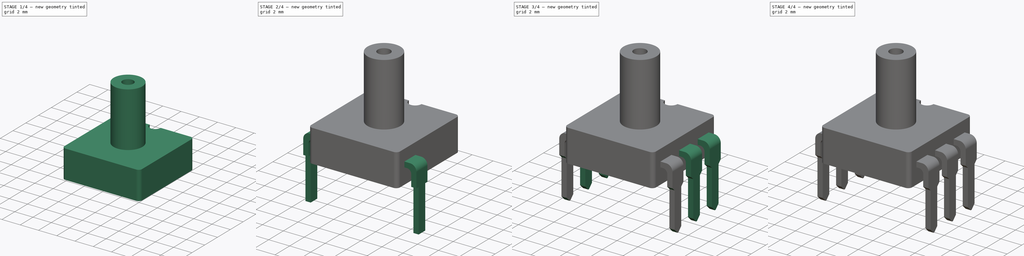
[diagram: build sequence overview — one tinted view per stage of 4, left to right]
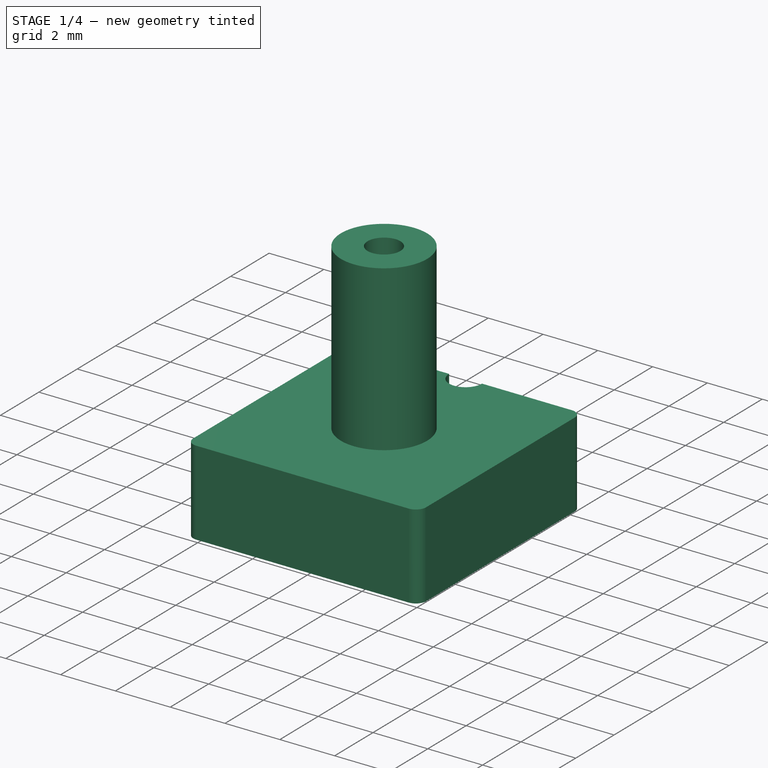
[diagram: stage 1 of 4 — iso view after this stage's code; geometry added in this stage tinted green]
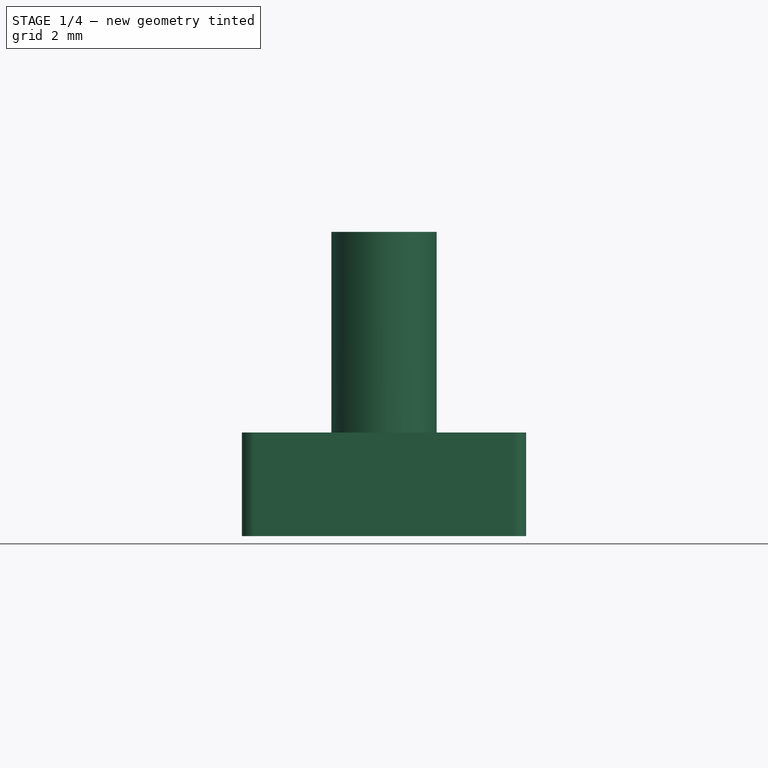
[diagram: stage 1 of 4 — front view after this stage's code; geometry added in this stage tinted green]
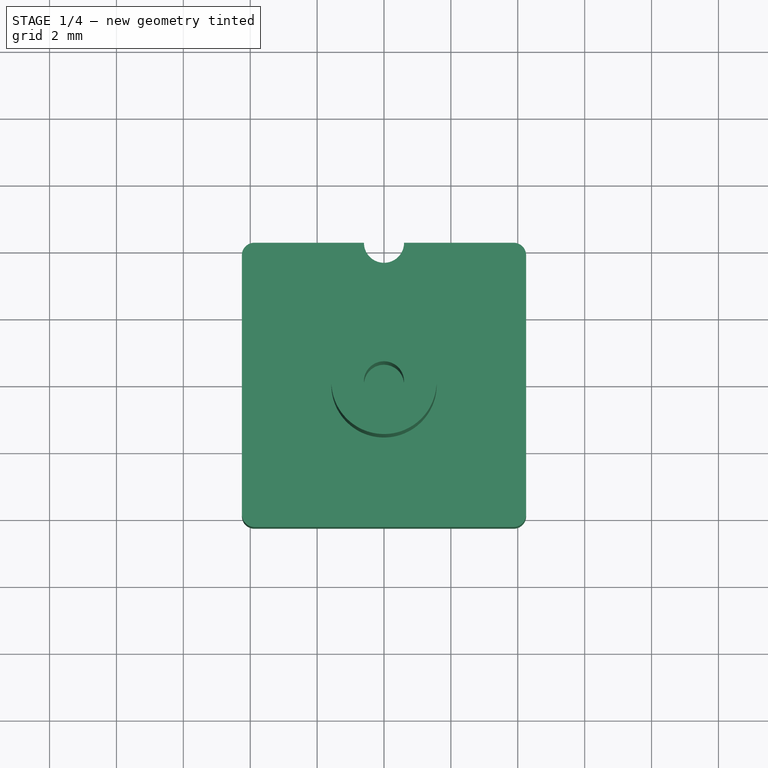
[diagram: stage 1 of 4 — top view after this stage's code; geometry added in this stage tinted green]
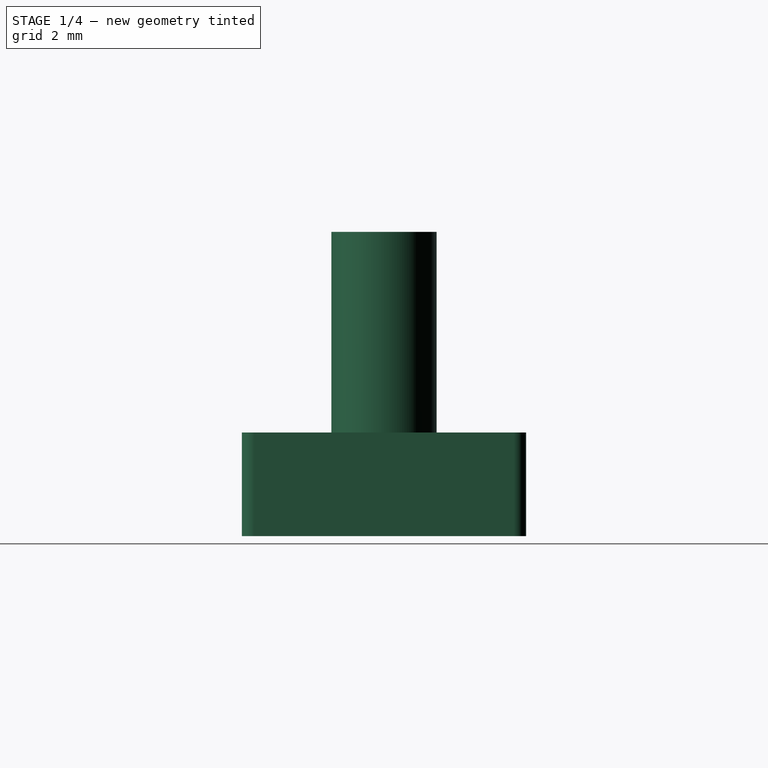
[diagram: stage 1 of 4 — right view after this stage's code; geometry added in this stage tinted green]
FCSTD DOCUMENT  (FreeCAD 0.19R24276 (Git))
Label: XGZP6857D200KPGPN33 
License: All rights reserved
LicenseURL: http://en.wikipedia.org/wiki/All_rights_reserved
objects: Sketcher::SketchObject×5, PartDesign::Pad×3, PartDesign::Chamfer×3, PartDesign::Pocket×2, PartDesign::LinearPattern×1, PartDesign::Body×1
note: 23 computed .brp shape members not serialized (recipe doc carries the construction recipe); baked Part::Feature solids carry a one-line shape summary decoded from their .brp

FEATURE [Sketcher::SketchObject] Sketch
  FullyConstrained = true
  MapMode = 5
  Support = -> [XY_Plane]
  sketch-geometry (20):
    g0: LineSegment StartX=-3.875 StartY=-4.25 StartZ=0 EndX=3.875 EndY=-4.25 EndZ=0
    g1: LineSegment StartX=4.25 StartY=-3.875 StartZ=0 EndX=4.25 EndY=3.875 EndZ=0
    g2: LineSegment StartX=3.875 StartY=4.25 StartZ=0 EndX=0.6 EndY=4.25 EndZ=0
    g3: LineSegment StartX=-4.25 StartY=3.875 StartZ=0 EndX=-4.25 EndY=-3.875 EndZ=0
    g4: ArcOfCircle CenterX=0 CenterY=4.25 CenterZ=0 NormalX=0 NormalY=0 NormalZ=1 AngleXU=0 Radius=0.6 StartAngle=3.14159 EndAngle=6.28319
    g5: LineSegment StartX=-0.6 StartY=4.25 StartZ=0 EndX=-3.875 EndY=4.25 EndZ=0
    g6: ArcOfCircle CenterX=-3.875 CenterY=3.875 CenterZ=0 NormalX=0 NormalY=0 NormalZ=1 AngleXU=0 Radius=0.375 StartAngle=1.5708 EndAngle=3.14159
    g7: GeomPoint X=-4.25 Y=4.25 Z=0
    g8: ArcOfCircle CenterX=-3.875 CenterY=-3.875 CenterZ=0 NormalX=0 NormalY=0 NormalZ=1 AngleXU=0 Radius=0.375 StartAngle=3.14159 EndAngle=4.71239
    g9: GeomPoint X=-4.25 Y=-4.25 Z=0
    g10: ArcOfCircle CenterX=3.875 CenterY=-3.875 CenterZ=0 NormalX=0 NormalY=0 NormalZ=1 AngleXU=0 Radius=0.375 StartAngle=4.71239 EndAngle=6.28319
    g11: GeomPoint X=4.25 Y=-4.25 Z=0
    g12: ArcOfCircle CenterX=3.875 CenterY=3.875 CenterZ=0 NormalX=0 NormalY=0 NormalZ=1 AngleXU=0 Radius=0.375 StartAngle=4e-16 EndAngle=1.5708
    g13: GeomPoint X=4.25 Y=4.25 Z=0
    g14: Circle CenterX=-5.08 CenterY=2.54 CenterZ=0 NormalX=0 NormalY=0 NormalZ=1 AngleXU=0 Radius=0.45
    g15: Circle CenterX=-5.08 CenterY=0 CenterZ=0 NormalX=0 NormalY=0 NormalZ=1 AngleXU=0 Radius=0.45
    g16: Circle CenterX=-5.08 CenterY=-2.54 CenterZ=0 NormalX=0 NormalY=0 NormalZ=1 AngleXU=0 Radius=0.45
    g17: Circle CenterX=5.08 CenterY=-2.54 CenterZ=0 NormalX=0 NormalY=0 NormalZ=1 AngleXU=0 Radius=0.45
    g18: Circle CenterX=5.08 CenterY=0 CenterZ=0 NormalX=0 NormalY=0 NormalZ=1 AngleXU=0 Radius=0.45
    g19: Circle CenterX=5.08 CenterY=2.54 CenterZ=0 NormalX=0 NormalY=0 NormalZ=1 AngleXU=0 Radius=0.45
  constraints (48):
    c: Horizontal(g2)
    c: Vertical(g1)
    c: Symmetric(g7,g9,g-1)
    c: Symmetric(g9,g11,g-2)
    c: DistanceY(g9,g7) = 8.5
    c: PointOnObject(g4,g2)
    c: PointOnObject(g4,g-2)
    c: Coincident(g2,g4)
    c: Coincident(g5,g4)
    c: Tangent(g2,g5)
    c: Diameter(g4) = 1.2
    c: PointOnObject(g7,g3)
    c: PointOnObject(g7,g5)
    c: Tangent(g3,g6) = -1.5708
    c: Tangent(g5,g6) = -1.5708
    c: PointOnObject(g9,g3)
    c: PointOnObject(g9,g0)
    c: Tangent(g3,g8) = -1.5708
    c: Tangent(g0,g8) = -1.5708
    c: PointOnObject(g11,g0)
    c: PointOnObject(g11,g1)
    c: Tangent(g0,g10) = -1.5708
    c: Tangent(g1,g10) = -1.5708
    c: PointOnObject(g13,g1)
    c: PointOnObject(g13,g2)
    c: Tangent(g1,g12) = -1.5708
    c: Tangent(g2,g12) = -1.5708
    c: Equal(g10,g12)
    c: Equal(g12,g6)
    c: Equal(g6,g8)
    c: Diameter(g12) = 0.75
    c: DistanceX(g3,g1) = 8.5
    c: PointOnObject(g15,g-1)
    c: PointOnObject(g18,g-1)
    c: Vertical(g19,g18)
    c: Vertical(g18,g17)
    c: Vertical(g16,g15)
    c: Horizontal(g17,g16)
    c: Symmetric(g14,g19,g-2)
    c: Symmetric(g16,g14,g-1)
    c: Equal(g14,g15)
    c: Equal(g15,g16)
    c: Equal(g16,g17)
    c: Equal(g17,g18)
    c: Equal(g18,g19)
    c: Diameter(g14) = 0.9
    c: DistanceY(g16,g15) = 2.54
    c: DistanceX(g16,g17) = 10.16
FEATURE [PartDesign::Pad] Pad
  Direction = (1,1,1)
  Length = 3.1
  Length2 = 100
  Profile = -> Sketch
  Type = 0
FEATURE [Sketcher::SketchObject] Sketch001
  FullyConstrained = true
  MapMode = 5
  Support = -> [XY_Plane]
  sketch-geometry (2):
    g0: Circle CenterX=0 CenterY=0 CenterZ=0 NormalX=0 NormalY=0 NormalZ=1 AngleXU=0 Radius=1.575
    g1: Circle CenterX=0 CenterY=0 CenterZ=0 NormalX=0 NormalY=0 NormalZ=1 AngleXU=0 Radius=0.6
  constraints (5):
    c: Coincident(g0,g-1)
    c: Diameter(g0) = 3.15
    c: PointOnObject(g1,g-1)
    c: Diameter(g1) = 1.2
    c: PointOnObject(g1,g-2)
FEATURE [PartDesign::Pad] Pad001
  BaseFeature = -> Pad
  Direction = (1,1,1)
  Length = 9.1
  Length2 = 100
  Profile = -> Sketch001
  Type = 0
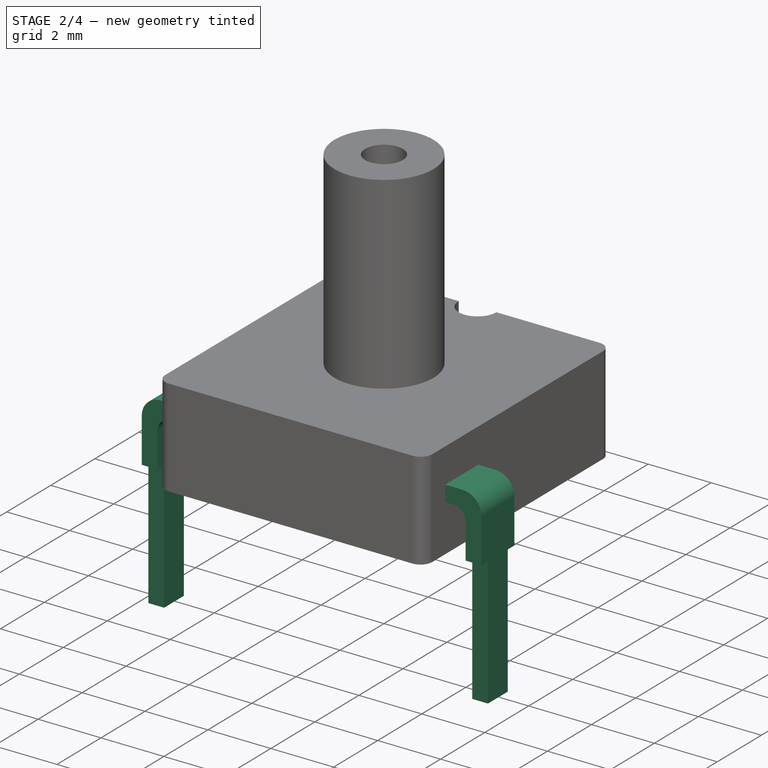
[diagram: stage 2 of 4 — iso view after this stage's code; geometry added in this stage tinted green]
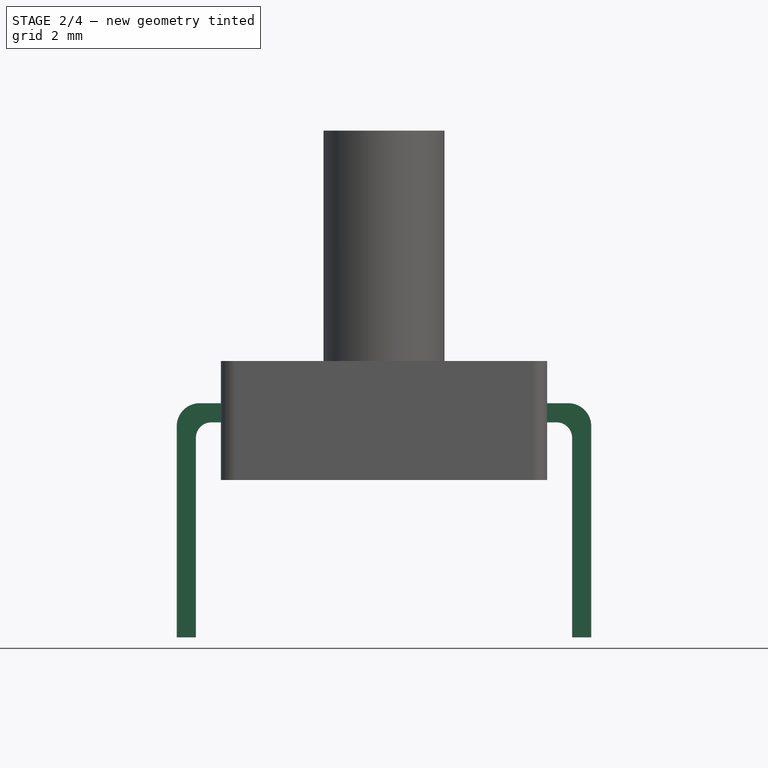
[diagram: stage 2 of 4 — front view after this stage's code; geometry added in this stage tinted green]
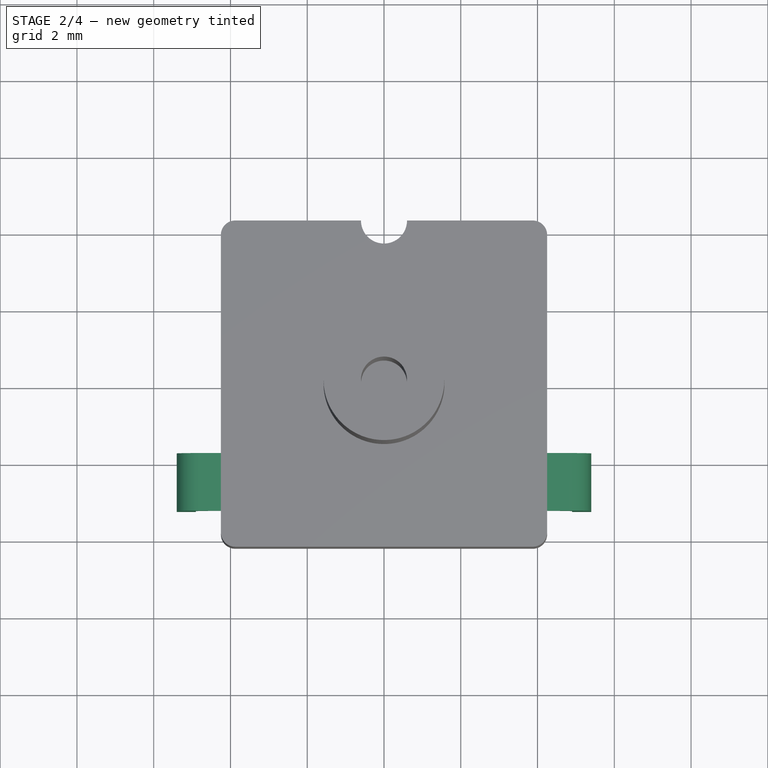
[diagram: stage 2 of 4 — top view after this stage's code; geometry added in this stage tinted green]
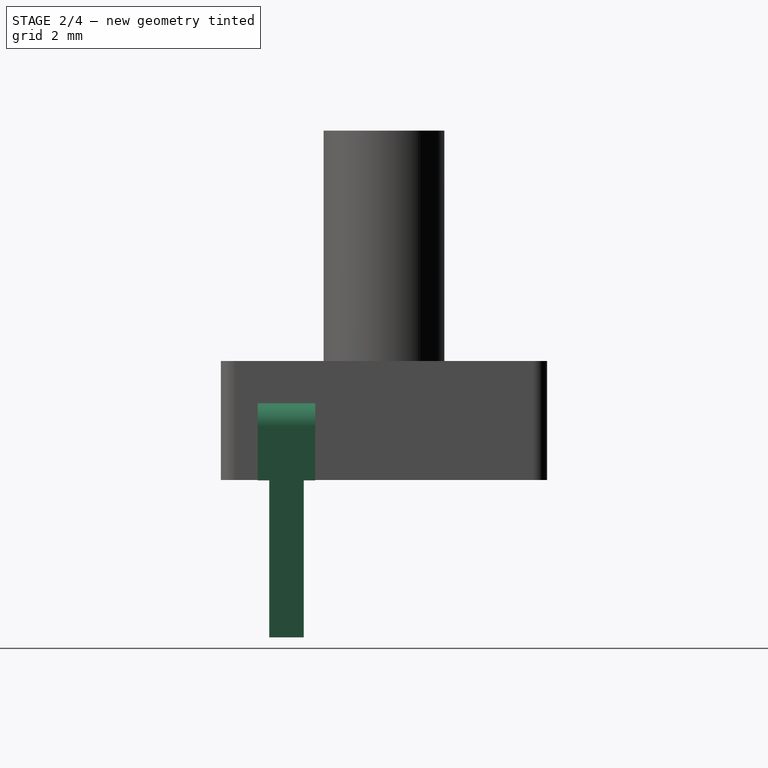
[diagram: stage 2 of 4 — right view after this stage's code; geometry added in this stage tinted green]
FEATURE [Sketcher::SketchObject] Sketch002
  AttachmentOffset = pos=(0,0,-4.1) rot=(0,0,1;0rad)
  FullyConstrained = false
  MapMode = 5
  Placement = pos=(0,0,-4.1) rot=(0,0,1;0rad)
  Support = -> [XY_Plane]
  sketch-geometry (36):
    g0: LineSegment StartX=-3.875 StartY=-4.25 StartZ=0 EndX=3.875 EndY=-4.25 EndZ=0
    g1: LineSegment StartX=4.25 StartY=-3.875 StartZ=0 EndX=4.25 EndY=3.875 EndZ=0
    g2: LineSegment StartX=3.875 StartY=4.25 StartZ=0 EndX=0.6 EndY=4.25 EndZ=0
    g3: LineSegment StartX=-4.25 StartY=3.875 StartZ=0 EndX=-4.25 EndY=-3.875 EndZ=0
    g4: ArcOfCircle CenterX=0 CenterY=4.25 CenterZ=0 NormalX=0 NormalY=0 NormalZ=1 AngleXU=0 Radius=0.6 StartAngle=3.14159 EndAngle=6.28319
    g5: LineSegment StartX=-0.6 StartY=4.25 StartZ=0 EndX=-3.875 EndY=4.25 EndZ=0
    g6: ArcOfCircle CenterX=-3.875 CenterY=3.875 CenterZ=0 NormalX=0 NormalY=0 NormalZ=1 AngleXU=0 Radius=0.375 StartAngle=1.5708 EndAngle=3.14159
    g7: GeomPoint X=-4.25 Y=4.25 Z=0
    g8: ArcOfCircle CenterX=-3.875 CenterY=-3.875 CenterZ=0 NormalX=0 NormalY=0 NormalZ=1 AngleXU=0 Radius=0.375 StartAngle=3.14159 EndAngle=4.71239
    g9: GeomPoint X=-4.25 Y=-4.25 Z=0
    g10: ArcOfCircle CenterX=3.875 CenterY=-3.875 CenterZ=0 NormalX=0 NormalY=0 NormalZ=1 AngleXU=0 Radius=0.375 StartAngle=4.71239 EndAngle=6.28319
    g11: GeomPoint X=4.25 Y=-4.25 Z=0
    g12: ArcOfCircle CenterX=3.875 CenterY=3.875 CenterZ=0 NormalX=0 NormalY=0 NormalZ=1 AngleXU=0 Radius=0.375 StartAngle=4e-16 EndAngle=1.5708
    g13: GeomPoint X=4.25 Y=4.25 Z=0
    g14: Circle CenterX=-5.08 CenterY=2.54 CenterZ=0 NormalX=0 NormalY=0 NormalZ=1 AngleXU=0 Radius=0.45
    g15: Circle CenterX=-5.08 CenterY=0 CenterZ=0 NormalX=0 NormalY=0 NormalZ=1 AngleXU=0 Radius=0.45
    g16: Circle CenterX=-5.08 CenterY=-2.54 CenterZ=0 NormalX=0 NormalY=0 NormalZ=1 AngleXU=0 Radius=0.45
    g17: Circle CenterX=5.08 CenterY=-2.54 CenterZ=0 NormalX=0 NormalY=0 NormalZ=1 AngleXU=0 Radius=0.45
    g18: Circle CenterX=5.08 CenterY=0 CenterZ=0 NormalX=0 NormalY=0 NormalZ=1 AngleXU=0 Radius=0.45
    g19: Circle CenterX=5.08 CenterY=2.54 CenterZ=0 NormalX=0 NormalY=0 NormalZ=1 AngleXU=0 Radius=0.45
    g20: LineSegment StartX=-5.7797 StartY=-1.64814 StartZ=0 EndX=5.78025 EndY=-1.64814 EndZ=0
    g21: LineSegment StartX=5.78025 StartY=-1.64814 StartZ=0 EndX=5.78025 EndY=-3.31382 EndZ=0
    g22: LineSegment StartX=5.78025 StartY=-3.31382 StartZ=0 EndX=-5.7797 EndY=-3.31382 EndZ=0
    g23: LineSegment StartX=-5.7797 StartY=-3.31382 StartZ=0 EndX=-5.7797 EndY=-1.64814 EndZ=0
    g24: LineSegment StartX=6.55618 StartY=-5.05323 StartZ=0 EndX=2.55902 EndY=-5.05323 EndZ=0
    g25: LineSegment StartX=2.55902 StartY=-5.05323 StartZ=0 EndX=2.55902 EndY=6.69478 EndZ=0
    g26: LineSegment StartX=2.55902 StartY=6.69478 StartZ=0 EndX=6.55618 EndY=6.69478 EndZ=0
    g27: LineSegment StartX=6.55618 StartY=6.69478 StartZ=0 EndX=6.55618 EndY=-5.05323 EndZ=0
    g28: LineSegment StartX=-5.53 StartY=-2.99 StartZ=0 EndX=-4.63 EndY=-2.99 EndZ=0
    g29: LineSegment StartX=-4.63 StartY=-2.99 StartZ=0 EndX=-4.63 EndY=-2.09 EndZ=0
    g30: LineSegment StartX=-4.63 StartY=-2.09 StartZ=0 EndX=-5.53 EndY=-2.09 EndZ=0
    g31: LineSegment StartX=-5.53 StartY=-2.09 StartZ=0 EndX=-5.53 EndY=-2.99 EndZ=0
    g32: LineSegment StartX=4.63 StartY=-2.09 StartZ=0 EndX=5.53 EndY=-2.09 EndZ=0
    g33: LineSegment StartX=5.53 StartY=-2.09 StartZ=0 EndX=5.53 EndY=-2.99 EndZ=0
    g34: LineSegment StartX=5.53 StartY=-2.99 StartZ=0 EndX=4.63 EndY=-2.99 EndZ=0
    g35: LineSegment StartX=4.63 StartY=-2.99 StartZ=0 EndX=4.63 EndY=-2.09 EndZ=0
  constraints (88):
    c: Horizontal(g2)
    c: Vertical(g1)
    c: Symmetric(g7,g9,g-1)
    c: Symmetric(g9,g11,g-2)
    c: DistanceY(g9,g7) = 8.5
    c: PointOnObject(g4,g2)
    c: PointOnObject(g4,g-2)
    c: Coincident(g2,g4)
    c: Coincident(g5,g4)
    c: Tangent(g2,g5)
    c: Diameter(g4) = 1.2
    c: PointOnObject(g7,g3)
    c: PointOnObject(g7,g5)
    c: Tangent(g3,g6) = -1.5708
    c: Tangent(g5,g6) = -1.5708
    c: PointOnObject(g9,g3)
    c: PointOnObject(g9,g0)
    c: Tangent(g3,g8) = -1.5708
    c: Tangent(g0,g8) = -1.5708
    c: PointOnObject(g11,g0)
    c: PointOnObject(g11,g1)
    c: Tangent(g0,g10) = -1.5708
    c: Tangent(g1,g10) = -1.5708
    c: PointOnObject(g13,g1)
    c: PointOnObject(g13,g2)
    c: Tangent(g1,g12) = -1.5708
    c: Tangent(g2,g12) = -1.5708
    c: Equal(g10,g12)
    c: Equal(g12,g6)
    c: Equal(g6,g8)
    c: Diameter(g12) = 0.75
    c: DistanceX(g3,g1) = 8.5
    c: PointOnObject(g15,g-1)
    c: PointOnObject(g18,g-1)
    c: Vertical(g19,g18)
    c: Vertical(g18,g17)
    c: Vertical(g16,g15)
    c: Horizontal(g17,g16)
    c: Symmetric(g14,g19,g-2)
    c: Symmetric(g16,g14,g-1)
    c: Equal(g14,g15)
    c: Equal(g15,g16)
    c: Equal(g16,g17)
    c: Equal(g17,g18)
    c: Equal(g18,g19)
    c: Diameter(g14) = 0.9
    c: DistanceY(g16,g15) = 2.54
    c: DistanceX(g16,g17) = 10.16
    c: Coincident(g20,g21)
    c: Coincident(g21,g22)
    c: Coincident(g22,g23)
    c: Coincident(g23,g20)
    c: Horizontal(g20)
    c: Horizontal(g22)
    c: Vertical(g21)
    c: Vertical(g23)
    c: Coincident(g24,g25)
    c: Coincident(g25,g26)
    c: Coincident(g26,g27)
    c: Coincident(g27,g24)
    c: Horizontal(g24)
    c: Horizontal(g26)
    c: Vertical(g25)
    c: Vertical(g27)
    c: Coincident(g28,g29)
    c: Coincident(g29,g30)
    c: Coincident(g30,g31)
    c: Coincident(g31,g28)
    c: Horizontal(g28)
    c: Horizontal(g30)
    c: Vertical(g29)
    c: Vertical(g31)
    c: Coincident(g32,g33)
    c: Coincident(g33,g34)
    c: Coincident(g34,g35)
    c: Coincident(g35,g32)
    c: Horizontal(g32)
    c: Horizontal(g34)
    c: Vertical(g33)
    c: Vertical(g35)
    c: Tangent(g33,g17)
    c: Tangent(g35,g17)
    c: Tangent(g34,g17)
    c: Tangent(g17,g32)
    c: Tangent(g16,g30)
    c: Tangent(g16,g31)
    c: Tangent(g28,g16)
    c: Tangent(g29,g16)
FEATURE [Sketcher::SketchObject] Sketch003
  AttachmentOffset = pos=(0,0,2.54) rot=(0,0,1;0rad)
  ExternalGeometry = -> [Pad001,Sketch002]
  FullyConstrained = true
  MapMode = 5
  Placement = pos=(0,-2.54,-6e-16) rot=(1,0,0;1.5708rad)
  Support = -> [XZ_Plane]
  sketch-geometry (16):
    g0: ArcOfCircle CenterX=-4.8 CenterY=1.4 CenterZ=0 NormalX=0 NormalY=0 NormalZ=1 AngleXU=0 Radius=0.6 StartAngle=1.5708 EndAngle=3.14159
    g1: LineSegment StartX=-4.8 StartY=2 StartZ=0 EndX=-4.25 EndY=2 EndZ=0
    g2: LineSegment StartX=-5.4 StartY=1.4 StartZ=0 EndX=-5.4 EndY=-4.1 EndZ=0
    g3: LineSegment StartX=-4.9 StartY=-4.1 StartZ=0 EndX=-4.9 EndY=1.1 EndZ=0
    g4: ArcOfCircle CenterX=-4.5 CenterY=1.1 CenterZ=0 NormalX=0 NormalY=0 NormalZ=1 AngleXU=0 Radius=0.4 StartAngle=1.5708 EndAngle=3.14159
    g5: LineSegment StartX=-4.5 StartY=1.5 StartZ=0 EndX=-4.25 EndY=1.5 EndZ=0
    g6: LineSegment StartX=-4.25 StartY=1.5 StartZ=0 EndX=-4.25 EndY=2 EndZ=0
    g7: LineSegment StartX=-5.4 StartY=-4.1 StartZ=0 EndX=-4.9 EndY=-4.1 EndZ=0
    g8: LineSegment StartX=5.4 StartY=1.4 StartZ=0 EndX=5.4 EndY=-4.1 EndZ=0
    g9: LineSegment StartX=4.9 StartY=-4.1 StartZ=0 EndX=4.9 EndY=1.1 EndZ=0
    g10: ArcOfCircle CenterX=4.8 CenterY=1.4 CenterZ=0 NormalX=0 NormalY=0 NormalZ=1 AngleXU=0 Radius=0.6 StartAngle=0 EndAngle=1.5708
    g11: LineSegment StartX=4.8 StartY=2 StartZ=0 EndX=4.25 EndY=2 EndZ=0
    g12: ArcOfCircle CenterX=4.5 CenterY=1.1 CenterZ=0 NormalX=0 NormalY=0 NormalZ=1 AngleXU=0 Radius=0.4 StartAngle=0 EndAngle=1.5708
    g13: LineSegment StartX=4.5 StartY=1.5 StartZ=0 EndX=4.25 EndY=1.5 EndZ=0
    g14: LineSegment StartX=4.25 StartY=1.5 StartZ=0 EndX=4.25 EndY=2 EndZ=0
    g15: LineSegment StartX=5.4 StartY=-4.1 StartZ=0 EndX=4.9 EndY=-4.1 EndZ=0
  constraints (48):
    c: PointOnObject(g1,g-6)
    c: Horizontal(g1)
    c: Tangent(g1,g0) = 1.5708
    c: Coincident(g2,g0)
    c: Vertical(g2)
    c: Horizontal(g0,g0)
    c: DistanceX(g2,g-1) = 5.4
    c: DistanceY(g1,g-6) = 1.1
    c: Diameter(g0) = 1.2
    c: PointOnObject(g2,g-8)
    c: PointOnObject(g3,g-8)
    c: Vertical(g3)
    c: Horizontal(g3,g0)
    c: DistanceX(g0,g3) = 0.5
    c: Coincident(g4,g3)
    c: Horizontal(g3,g4)
    c: Diameter(g4) = 0.8
    c: Vertical(g4,g4)
    c: Coincident(g5,g4)
    c: PointOnObject(g5,g-6)
    c: Coincident(g6,g5)
    c: Coincident(g6,g1)
    c: Horizontal(g5)
    c: DistanceY(g4,g0) = 0.5
    c: DistanceY(g6,g6) = 0.5
    c: Coincident(g7,g2)
    c: Coincident(g7,g3)
    c: Horizontal(g11)
    c: Tangent(g11,g10) = -1.5708
    c: Coincident(g8,g10)
    c: Vertical(g8)
    c: Diameter(g10) = 1.2
    c: Vertical(g9)
    c: Diameter(g12) = 0.8
    c: Coincident(g13,g12)
    c: Coincident(g14,g13)
    c: Coincident(g14,g11)
    c: Horizontal(g13)
    c: Coincident(g15,g8)
    c: Coincident(g15,g9)
    c: Vertical(g14)
    c: Symmetric(g11,g1,g-2)
    c: Symmetric(g9,g3,g-2)
    c: Tangent(g12,g9) = -1.5708
    c: Vertical(g12,g12)
    c: Equal(g15,g7)
    c: Horizontal(g10,g8)
    c: Tangent(g7,g15)
FEATURE [PartDesign::Pad] Pad002
  BaseFeature = -> Pad001
  Direction = (1,1,1)
  Length = 0.75
  Length2 = 0.75
  Profile = -> Sketch003
  Type = 4
FEATURE [PartDesign::Pocket] Pocket
  BaseFeature = -> Pad002
  Length = 4.09
  Length2 = 100
  Profile = -> Sketch002
  Reversed = true
  Type = 0
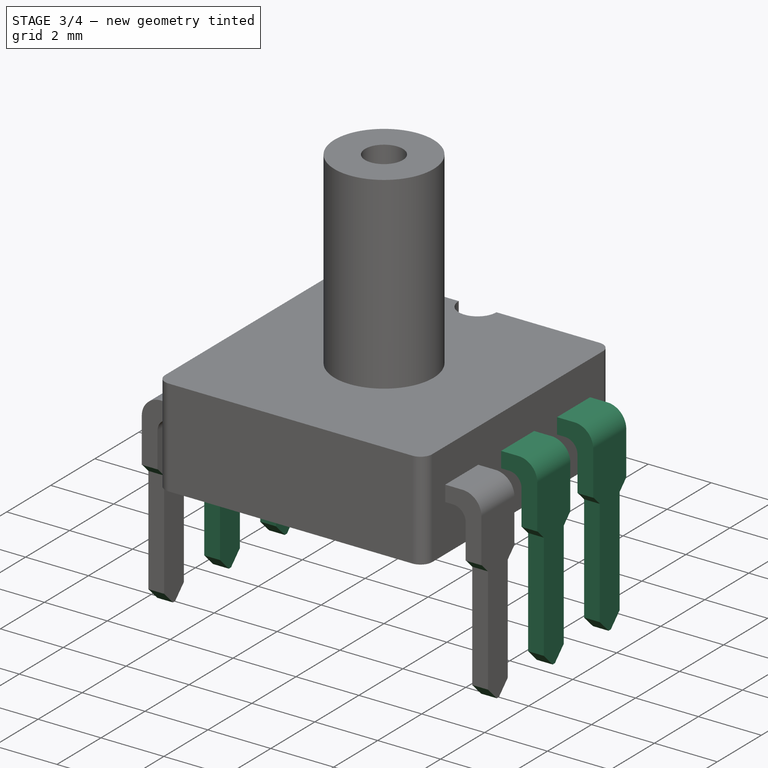
[diagram: stage 3 of 4 — iso view after this stage's code; geometry added in this stage tinted green]
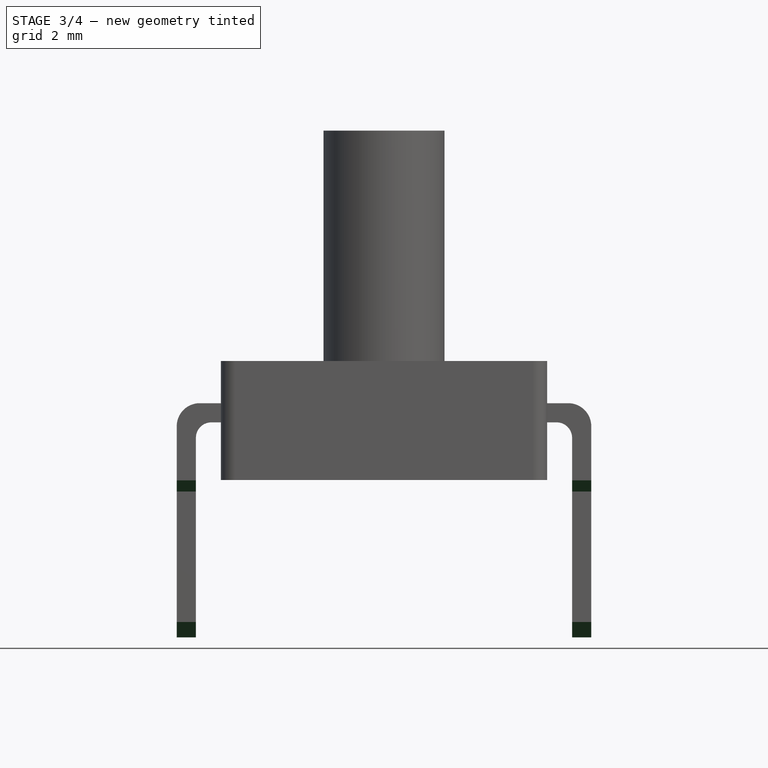
[diagram: stage 3 of 4 — front view after this stage's code; geometry added in this stage tinted green]
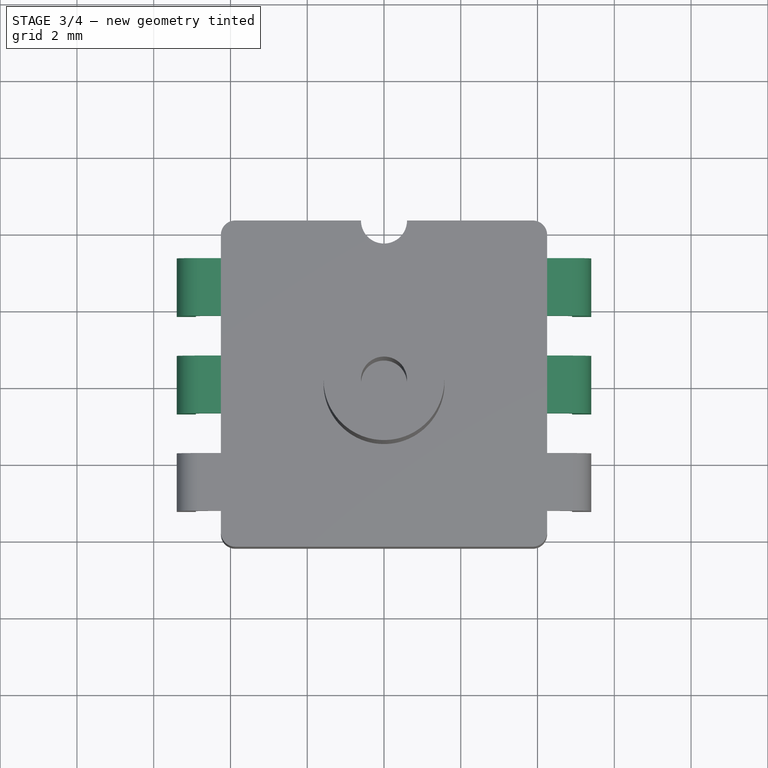
[diagram: stage 3 of 4 — top view after this stage's code; geometry added in this stage tinted green]
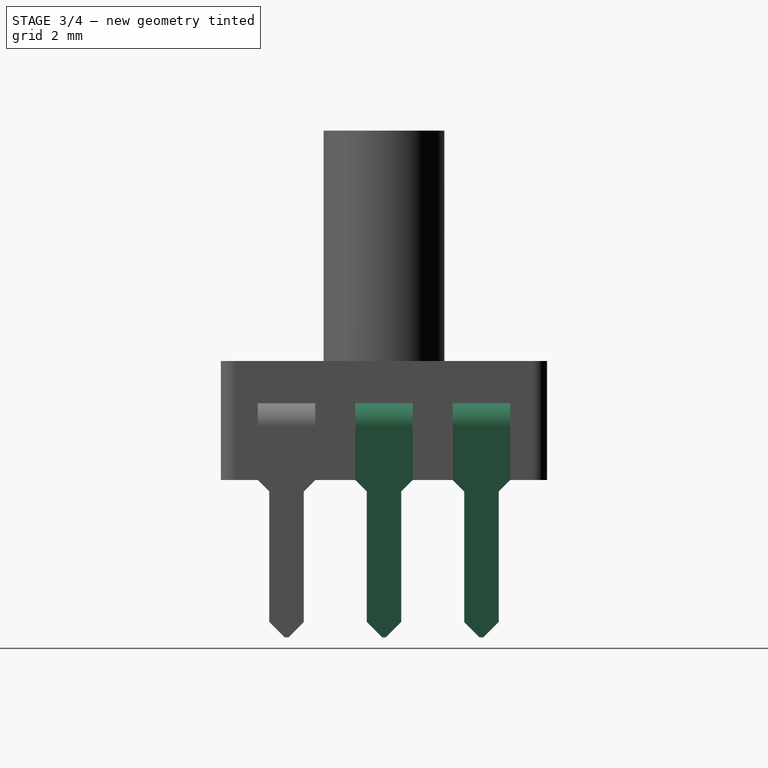
[diagram: stage 3 of 4 — right view after this stage's code; geometry added in this stage tinted green]
FEATURE [PartDesign::Chamfer] Chamfer001
  Angle = 45
  Base = -> Pocket [Edge104,Edge83,Edge90,Edge99]
  BaseFeature = -> Pocket
  ChamferType = 0
  FlipDirection = false
  Size = 0.29
  Size2 = 1
  SupportTransform = false
FEATURE [Sketcher::SketchObject] Sketch004
  FullyConstrained = true
  MapMode = 5
  Placement = pos=(0,0,0) rot=(1,0,0;1.5708rad)
  Support = -> [XZ_Plane]
  sketch-geometry (4):
    g0: LineSegment StartX=0.6 StartY=0.25 StartZ=0 EndX=-0.6 EndY=0.25 EndZ=0
    g1: LineSegment StartX=-0.6 StartY=0.25 StartZ=0 EndX=-0.6 EndY=0.75 EndZ=0
    g2: LineSegment StartX=-0.6 StartY=0.75 StartZ=0 EndX=0.6 EndY=0.75 EndZ=0
    g3: LineSegment StartX=0.6 StartY=0.75 StartZ=0 EndX=0.6 EndY=0.25 EndZ=0
  constraints (11):
    c: Coincident(g0,g1)
    c: Coincident(g1,g2)
    c: Coincident(g2,g3)
    c: Coincident(g3,g0)
    c: Horizontal(g0)
    c: Vertical(g1)
    c: Vertical(g3)
    c: Symmetric(g3,g1,g-2)
    c: DistanceY(g-1,g0) = 0.25
    c: DistanceX(g2,g2) = 1.2
    c: DistanceY(g1,g1) = 0.5
FEATURE [PartDesign::Chamfer] Chamfer
  Angle = 45
  Base = -> Chamfer001 [Edge16,Edge13,Edge121,Edge120]
  BaseFeature = -> Chamfer001
  ChamferType = 0
  FlipDirection = false
  Size = 0.4
  Size2 = 1
  SupportTransform = false
FEATURE [PartDesign::LinearPattern] LinearPattern
  BaseFeature = -> Chamfer
  Direction = -> Y_Axis
  Length = 5.08
  Occurrences = 3
  Originals = -> [Pad002,Pocket,Chamfer001,Chamfer]
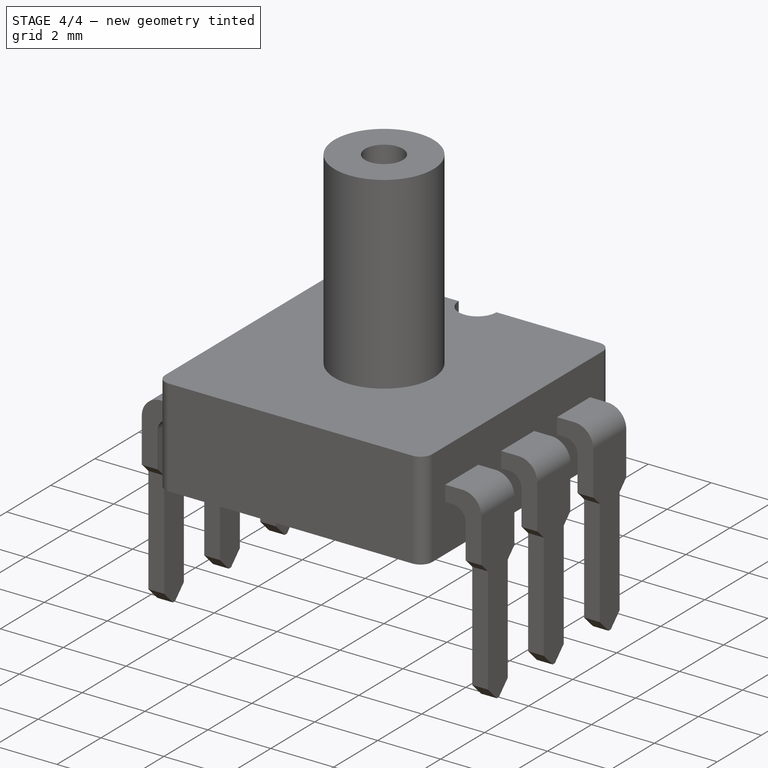
[diagram: stage 4 of 4 — iso view after this stage's code; geometry added in this stage tinted green]
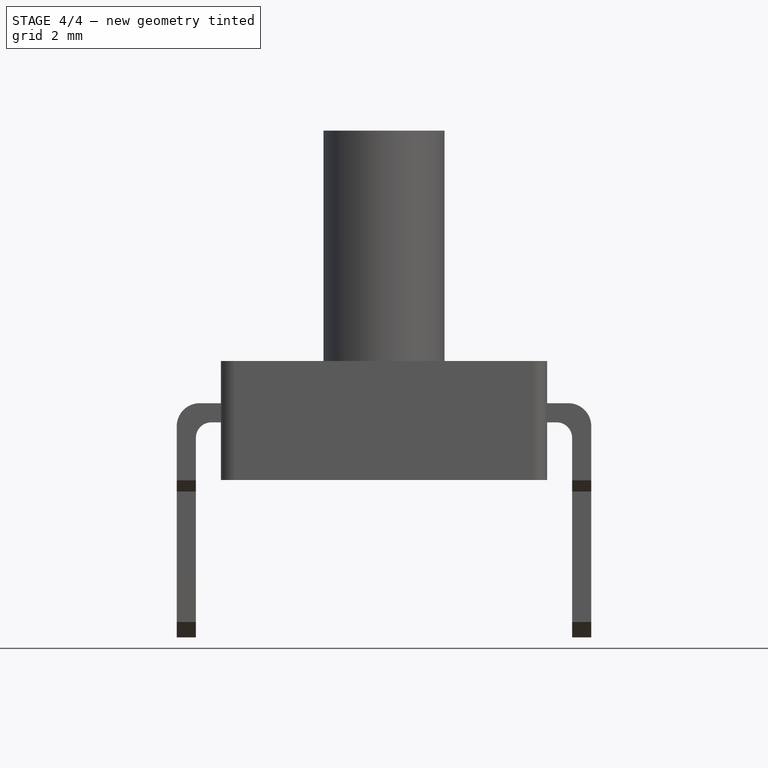
[diagram: stage 4 of 4 — front view after this stage's code; geometry added in this stage tinted green]
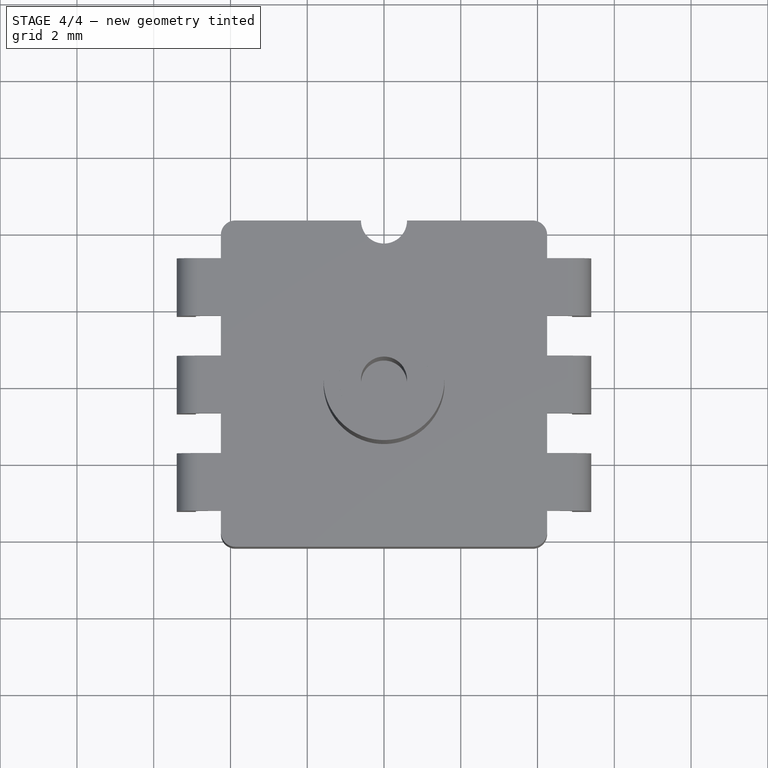
[diagram: stage 4 of 4 — top view after this stage's code; geometry added in this stage tinted green]
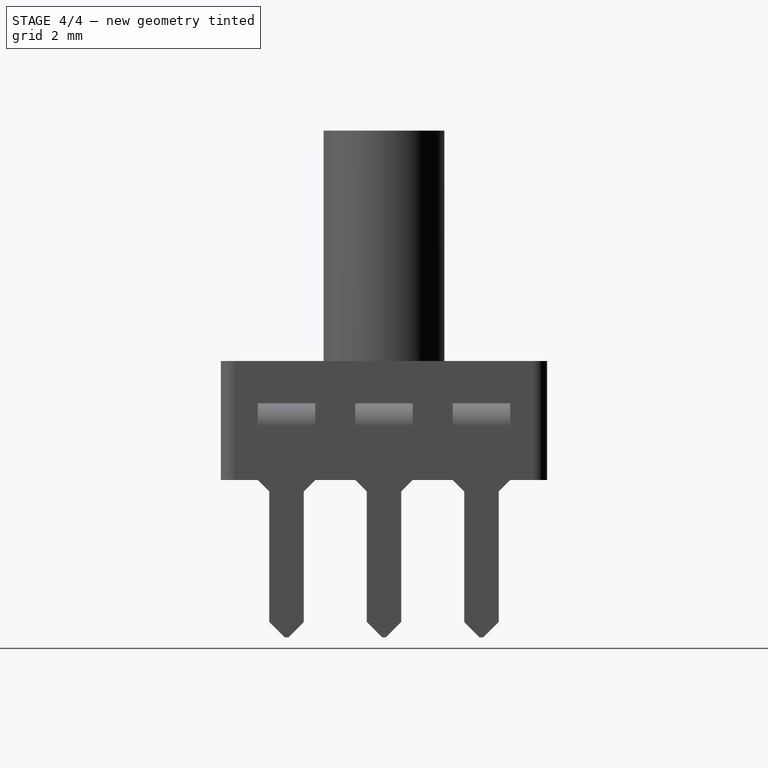
[diagram: stage 4 of 4 — right view after this stage's code; geometry added in this stage tinted green]
FEATURE [PartDesign::Pocket] Pocket001
  BaseFeature = -> LinearPattern
  Length = 5
  Length2 = 100
  Profile = -> Sketch004
  Type = 0
FEATURE [PartDesign::Chamfer] Chamfer002
  Angle = 45
  Base = -> LinearPattern [Edge135]
  BaseFeature = -> LinearPattern
  ChamferType = 0
  FlipDirection = false
  Size = 0.4
  Size2 = 1
  SupportTransform = false
FEATURE [PartDesign::Body] Body
  Group = -> [Sketch,Pad,Sketch001,Pad001,Sketch002,Sketch003,Pad002,Pocket,Chamfer001,Chamfer,LinearPattern,Sketch004,Pocket001,Chamfer002]
  Origin = -> Origin
  Tip = -> Chamfer002
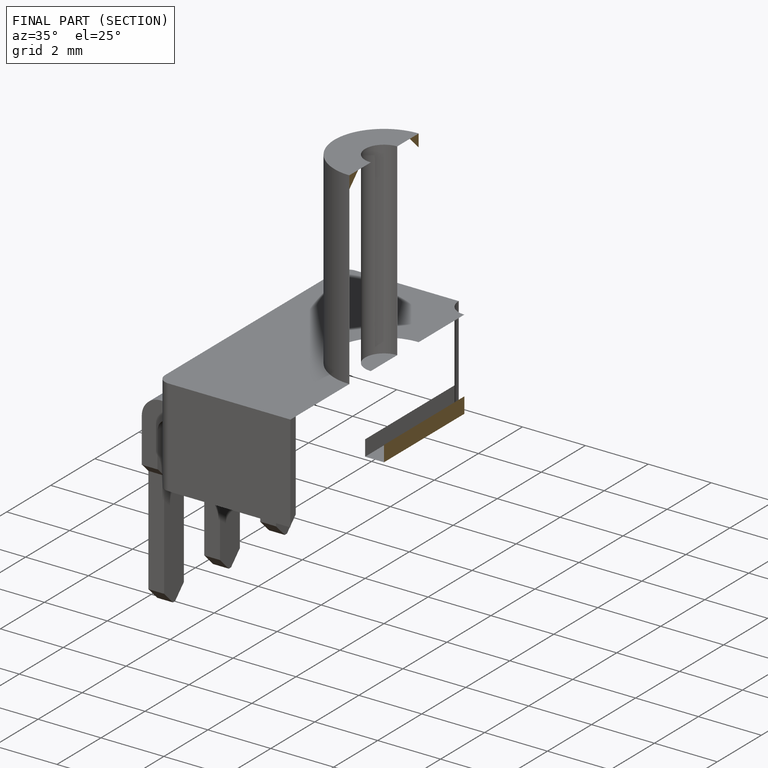
[diagram: finished part — half-section view (interior)]
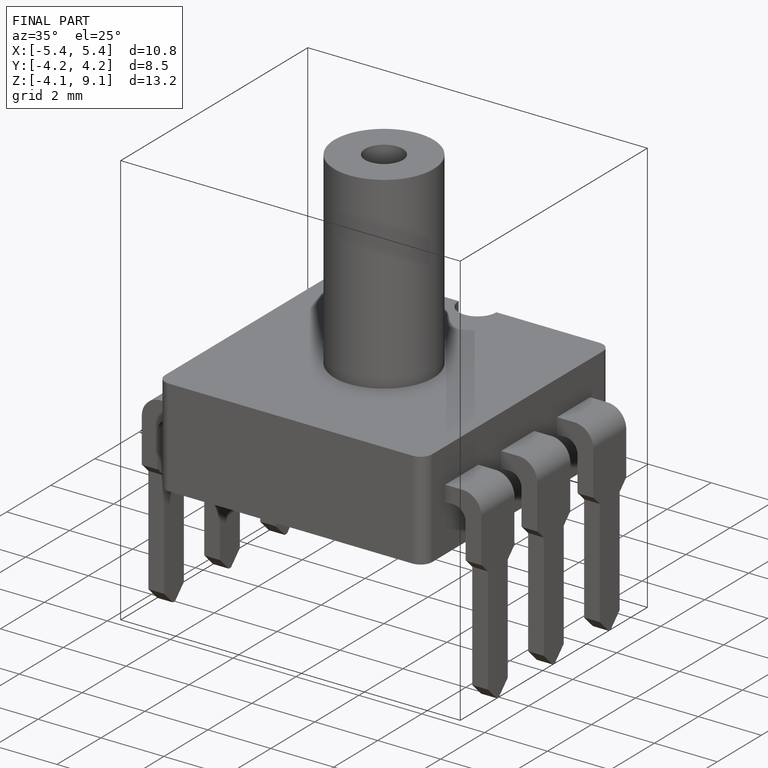
[diagram: finished part — iso view with bounding-box wireframe]
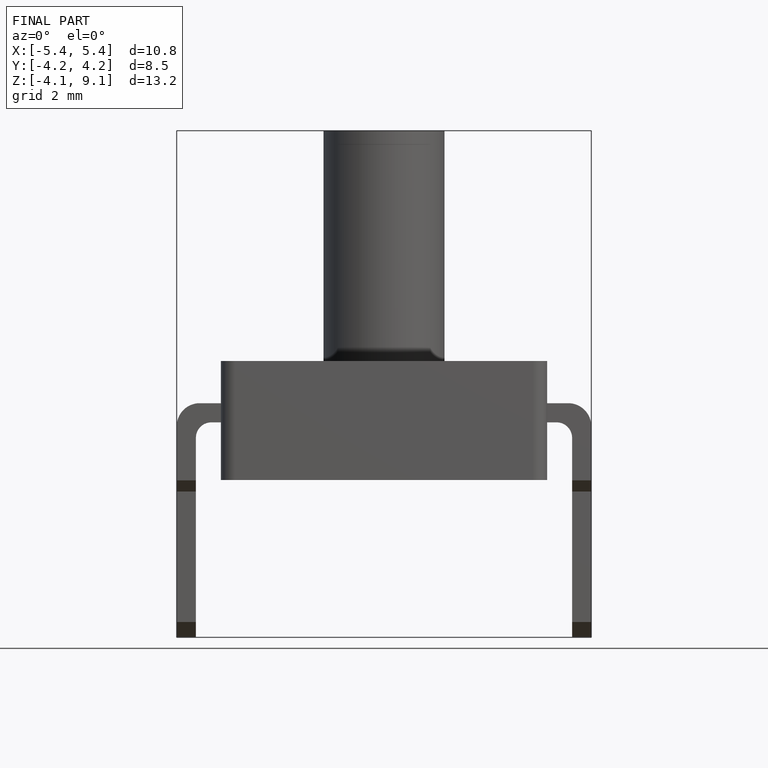
[diagram: finished part — front view with bounding-box wireframe]
